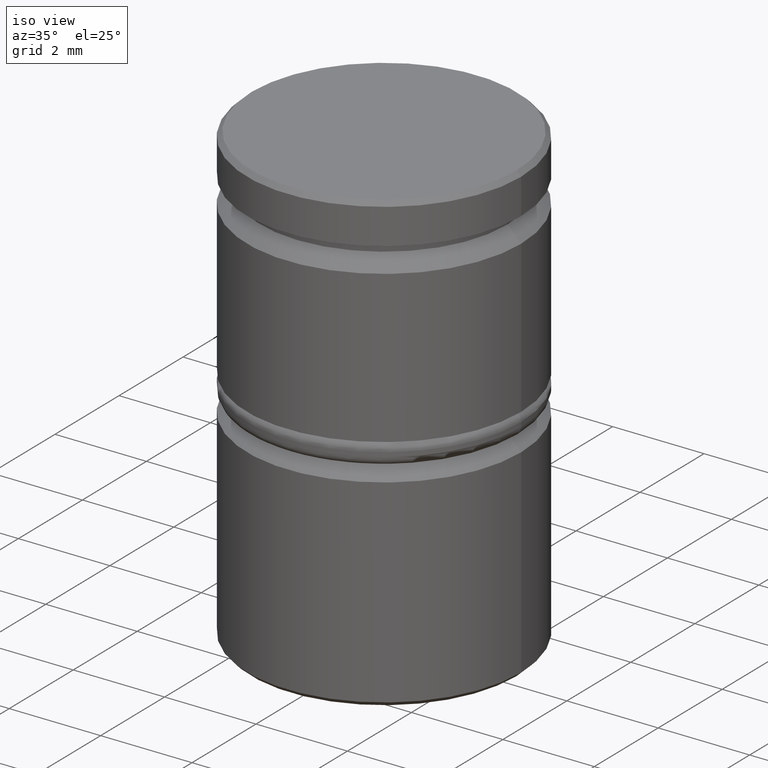
[diagram: clean part render]
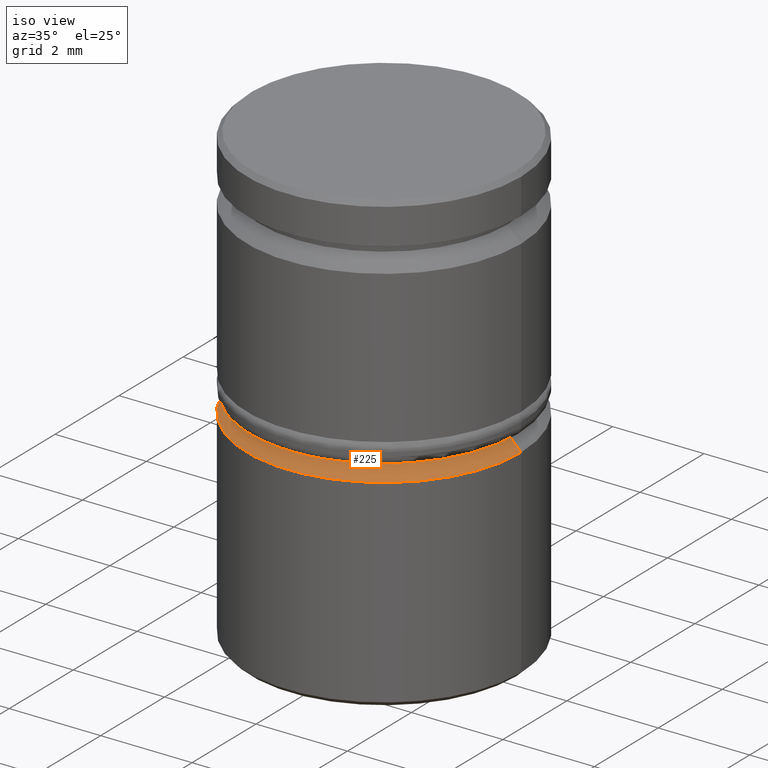
[diagram: same view with one face highlighted and labeled with its STEP entity id]
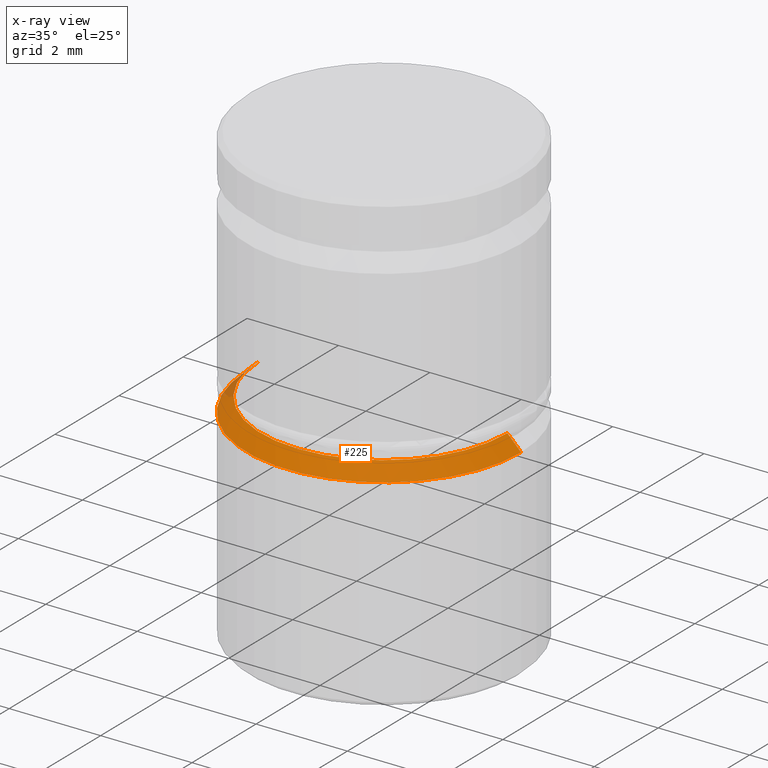
[diagram: x-ray of the same camera — body ghosted, the highlighted face saturated]
A machine part, iso view. The second image highlights one B-rep face of the part: STEP entity #225.
The next image is the same camera in x-ray: the body ghosted, the highlighted face saturated — about 2% of this face is hidden behind the body in this view.
In plain terms, the highlighted conical surface has half-angle 45 deg.
Its self-contained STEP definition (entity closure, byte-faithful):
#59 = ORIENTED_EDGE ( 'NONE', *, *, #97, .F. ) ;
#76 = DIRECTION ( 'NONE',  ( -1.000000000000000000, 0.000000000000000000, 0.000000000000000000 ) ) ;
#82 = DIRECTION ( 'NONE',  ( -0.7071067811865480168, 0.000000000000000000, -0.7071067811865470176 ) ) ;
#96 = CIRCLE ( 'NONE', #761, 2.700000000000000178 ) ;
#97 = EDGE_CURVE ( 'NONE', #333, #549, #1138, .T. ) ;
#225 = ADVANCED_FACE ( 'NONE', ( #1072 ), #552, .T. ) ;
#295 = CARTESIAN_POINT ( 'NONE',  ( -3.000000000000000000, 3.673940397442059868E-16, -5.550000000000000711 ) ) ;
#296 = ORIENTED_EDGE ( 'NONE', *, *, #942, .T. ) ;
#299 = ORIENTED_EDGE ( 'NONE', *, *, #736, .F. ) ;
#333 = VERTEX_POINT ( 'NONE', #388 ) ;
#343 = CARTESIAN_POINT ( 'NONE',  ( 0.000000000000000000, 0.000000000000000000, -5.249999999999999112 ) ) ;
#386 = DIRECTION ( 'NONE',  ( 0.7071067811865480168, 8.659560562354939021E-17, -0.7071067811865470176 ) ) ;
#388 = CARTESIAN_POINT ( 'NONE',  ( 3.000000000000000000, 0.000000000000000000, -5.550000000000000711 ) ) ;
#429 = LINE ( 'NONE', #520, #636 ) ;
#471 = CARTESIAN_POINT ( 'NONE',  ( 2.699999999999997957, 3.306546357697851268E-16, -5.249999999999999112 ) ) ;
#477 = LINE ( 'NONE', #471, #1119 ) ;
#478 = EDGE_CURVE ( 'NONE', #603, #333, #477, .T. ) ;
#479 = ORIENTED_EDGE ( 'NONE', *, *, #478, .F. ) ;
#482 = CARTESIAN_POINT ( 'NONE',  ( 2.700000000000000178, 0.000000000000000000, -5.249999999999999112 ) ) ;
#520 = CARTESIAN_POINT ( 'NONE',  ( -2.699999999999997957, 0.000000000000000000, -5.249999999999999112 ) ) ;
#532 = CARTESIAN_POINT ( 'NONE',  ( 0.000000000000000000, 0.000000000000000000, -5.550000000000000711 ) ) ;
#549 = VERTEX_POINT ( 'NONE', #295 ) ;
#552 = CONICAL_SURFACE ( 'NONE', #1139, 2.699999999999997957, 0.7853981633974490562 ) ;
#603 = VERTEX_POINT ( 'NONE', #482 ) ;
#636 = VECTOR ( 'NONE', #82, 1000.000000000000000 ) ;
#736 = EDGE_CURVE ( 'NONE', #979, #603, #96, .T. ) ;
#761 = AXIS2_PLACEMENT_3D ( 'NONE', #1135, #890, #791 ) ;
#789 = EDGE_LOOP ( 'NONE', ( #479, #299, #296, #59 ) ) ;
#791 = DIRECTION ( 'NONE',  ( 1.000000000000000000, 0.000000000000000000, 0.000000000000000000 ) ) ;
#883 = CARTESIAN_POINT ( 'NONE',  ( -2.700000000000000178, 3.306546357697853733E-16, -5.249999999999999112 ) ) ;
#890 = DIRECTION ( 'NONE',  ( -0.000000000000000000, -0.000000000000000000, 1.000000000000000000 ) ) ;
#899 = DIRECTION ( 'NONE',  ( 1.000000000000000000, 0.000000000000000000, 0.000000000000000000 ) ) ;
#910 = AXIS2_PLACEMENT_3D ( 'NONE', #532, #1179, #899 ) ;
#942 = EDGE_CURVE ( 'NONE', #979, #549, #429, .T. ) ;
#979 = VERTEX_POINT ( 'NONE', #883 ) ;
#1072 = FACE_OUTER_BOUND ( 'NONE', #789, .T. ) ;
#1095 = DIRECTION ( 'NONE',  ( 0.000000000000000000, 0.000000000000000000, -1.000000000000000000 ) ) ;
#1119 = VECTOR ( 'NONE', #386, 1000.000000000000000 ) ;
#1135 = CARTESIAN_POINT ( 'NONE',  ( 0.000000000000000000, 0.000000000000000000, -5.249999999999999112 ) ) ;
#1138 = CIRCLE ( 'NONE', #910, 3.000000000000000000 ) ;
#1139 = AXIS2_PLACEMENT_3D ( 'NONE', #343, #1095, #76 ) ;
#1179 = DIRECTION ( 'NONE',  ( 0.000000000000000000, 0.000000000000000000, -1.000000000000000000 ) ) ;